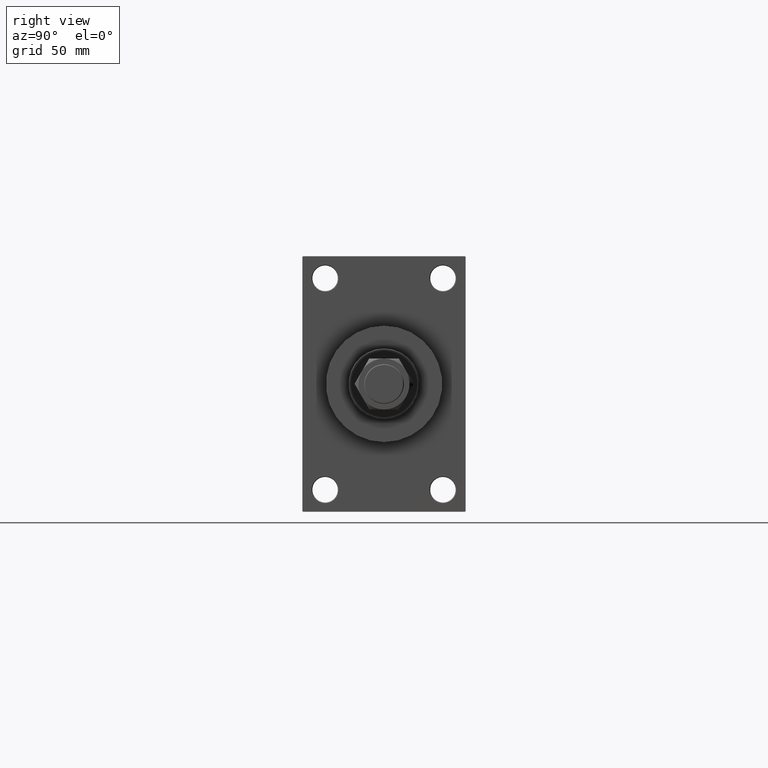
[diagram: clean part render]
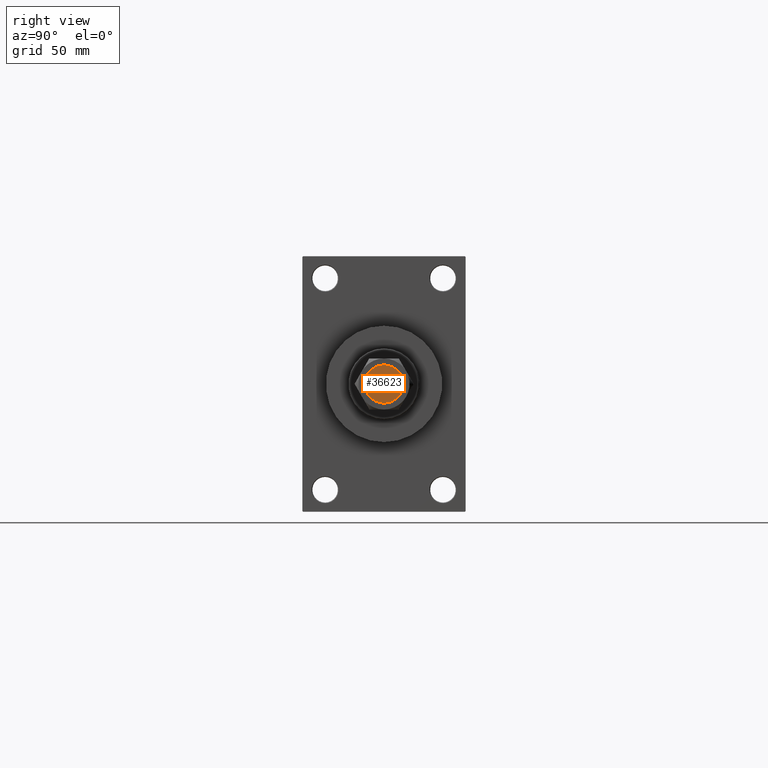
[diagram: same view with one face highlighted and labeled with its STEP entity id]
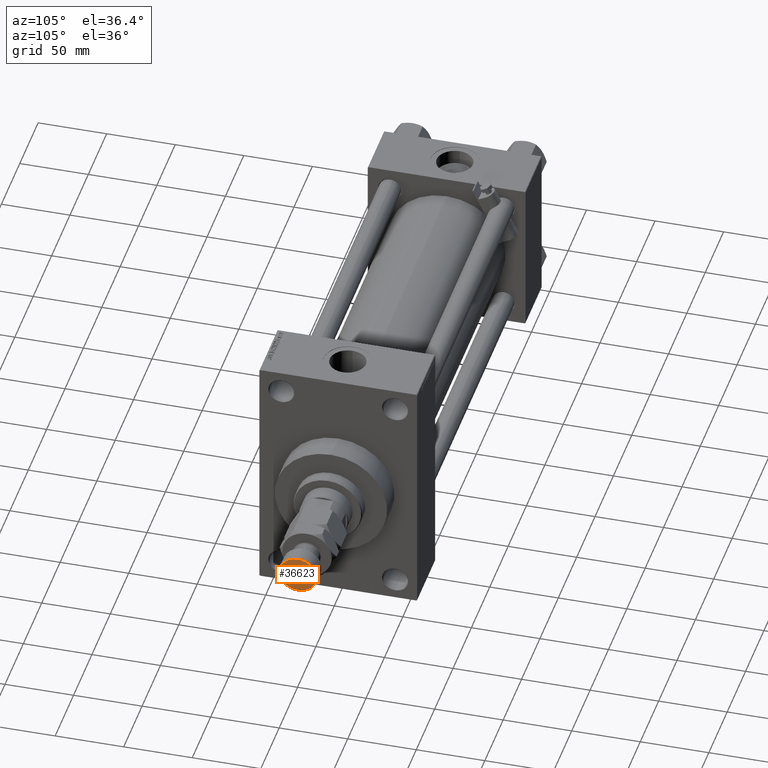
[diagram: same view with one face highlighted and labeled with its STEP entity id]
A machine part, right view. The second image highlights one B-rep face of the part: STEP entity #36623.
A second angle (auxiliary view) of the same face is appended — the face is thin or edge-on in the first view.
In plain terms, the highlighted planar face has unit normal (1, 0, 0).
Its self-contained STEP definition (entity closure, byte-faithful):
#2980 = EDGE_CURVE ( 'NONE', #18004, #7571, #22342, .T. ) ;
#6380 = CARTESIAN_POINT ( 'NONE',  ( 0.000000000000000000, 0.000000000000000000, 59.00000000000000000 ) ) ;
#7571 = VERTEX_POINT ( 'NONE', #8184 ) ;
#7657 = AXIS2_PLACEMENT_3D ( 'NONE', #6380, #22882, #13523 ) ;
#8003 = CARTESIAN_POINT ( 'NONE',  ( -13.50000000000001954, 0.000000000000000000, 59.00000000000000000 ) ) ;
#8184 = CARTESIAN_POINT ( 'NONE',  ( 13.50000000000001954, 1.683889348827612034E-15, 59.00000000000000000 ) ) ;
#8969 = EDGE_CURVE ( 'NONE', #7571, #18004, #15048, .T. ) ;
#9402 = CARTESIAN_POINT ( 'NONE',  ( 0.000000000000000000, 0.000000000000000000, 59.00000000000000000 ) ) ;
#11152 = FACE_OUTER_BOUND ( 'NONE', #48799, .T. ) ;
#13523 = DIRECTION ( 'NONE',  ( 1.000000000000000000, 0.000000000000000000, 0.000000000000000000 ) ) ;
#15048 = CIRCLE ( 'NONE', #43582, 13.50000000000001954 ) ;
#15233 = PLANE ( 'NONE',  #36548 ) ;
#15302 = ORIENTED_EDGE ( 'NONE', *, *, #2980, .T. ) ;
#16230 = DIRECTION ( 'NONE',  ( 1.000000000000000000, 0.000000000000000000, -0.000000000000000000 ) ) ;
#18004 = VERTEX_POINT ( 'NONE', #8003 ) ;
#22342 = CIRCLE ( 'NONE', #7657, 13.50000000000001954 ) ;
#22882 = DIRECTION ( 'NONE',  ( 0.000000000000000000, 0.000000000000000000, 1.000000000000000000 ) ) ;
#24965 = DIRECTION ( 'NONE',  ( 0.000000000000000000, 0.000000000000000000, 1.000000000000000000 ) ) ;
#34636 = ORIENTED_EDGE ( 'NONE', *, *, #8969, .T. ) ;
#36548 = AXIS2_PLACEMENT_3D ( 'NONE', #39447, #46370, #16230 ) ;
#36623 = ADVANCED_FACE ( 'NONE', ( #11152 ), #15233, .T. ) ;
#39447 = CARTESIAN_POINT ( 'NONE',  ( 0.000000000000000000, 0.000000000000000000, 59.00000000000000000 ) ) ;
#40538 = DIRECTION ( 'NONE',  ( 1.000000000000000000, 0.000000000000000000, 0.000000000000000000 ) ) ;
#43582 = AXIS2_PLACEMENT_3D ( 'NONE', #9402, #24965, #40538 ) ;
#46370 = DIRECTION ( 'NONE',  ( 0.000000000000000000, 0.000000000000000000, 1.000000000000000000 ) ) ;
#48799 = EDGE_LOOP ( 'NONE', ( #15302, #34636 ) ) ;